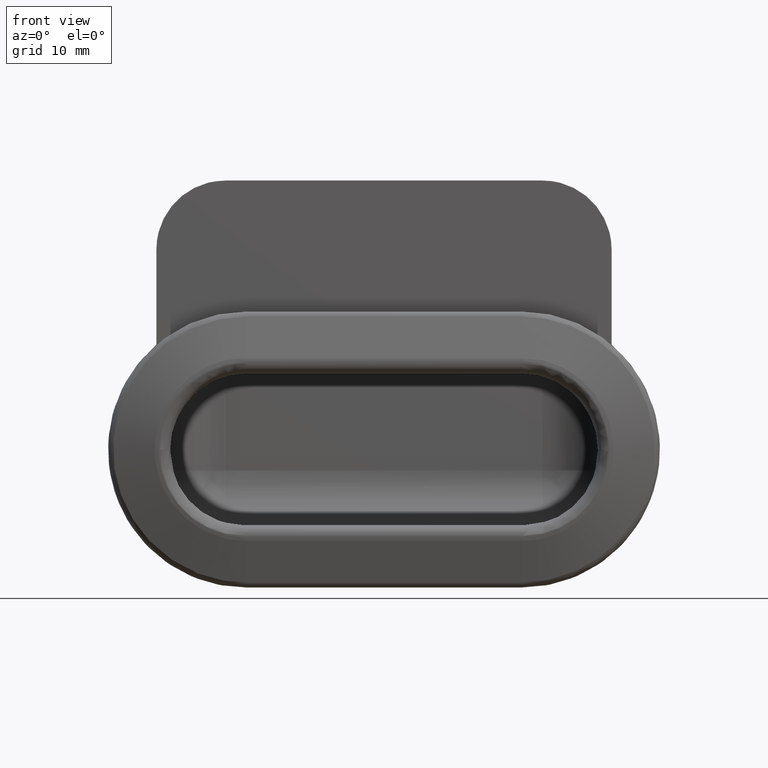
[diagram: clean part render]
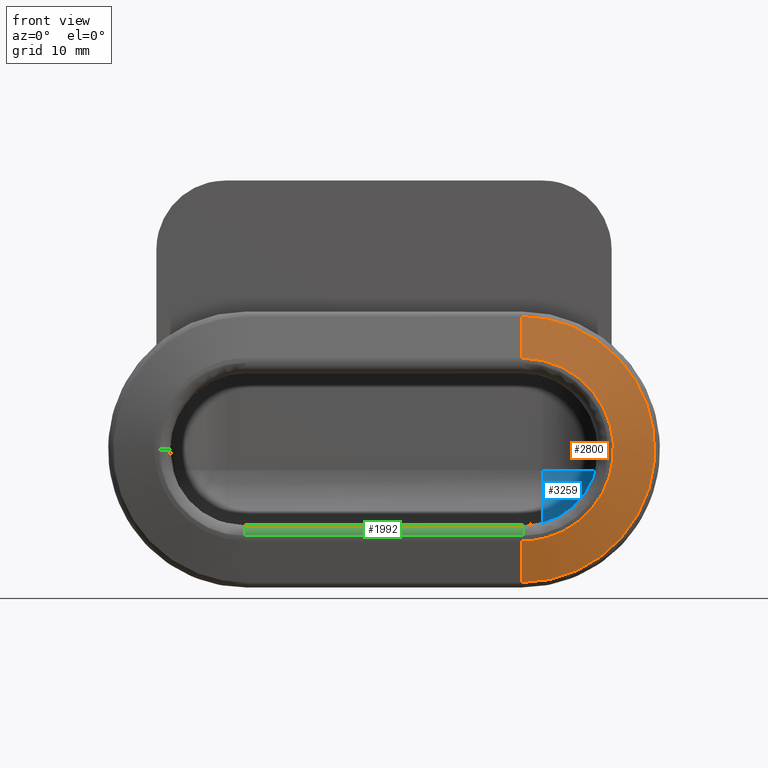
[diagram: same view with three faces highlighted in distinct colors, each labeled with its STEP entity id]
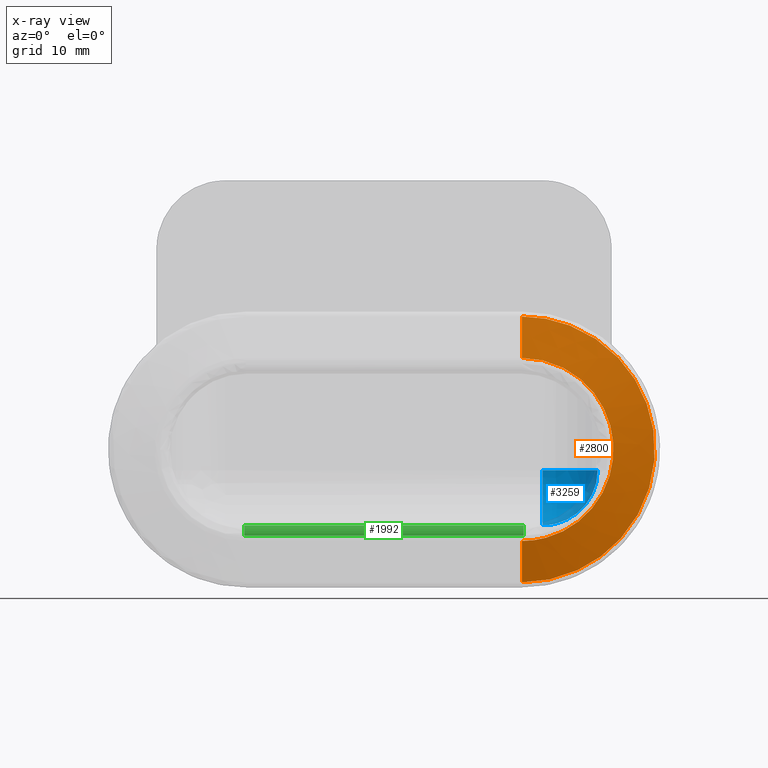
[diagram: x-ray of the same camera — body ghosted, the three highlighted faces saturated]
A machine part, front view with three faces highlighted in distinct colors.
The next image is the same camera in x-ray (body ghosted, the three faces saturated) — at least one of them is partly hidden behind the body in this view.
Their STEP definitions:

[orange] entity #2800 — the highlighted face is a freeform B-spline surface patch.
#1463=CARTESIAN_POINT('',(20.0,1.792777465113545,19.274721127897401));
#1464=VERTEX_POINT('',#1463);
#1510=CARTESIAN_POINT('',(20.0,1.792777465113535,-19.274721127897401));
#1511=VERTEX_POINT('',#1510);
#1563=CARTESIAN_POINT('',(20.0,1.792777465113535,-19.274721127897401));
#1564=CARTESIAN_POINT('',(39.274721127897394,1.792777465113535,-19.274721127897411));
#1565=CARTESIAN_POINT('',(39.274721127897401,1.792777465113535,0.0));
#1566=CARTESIAN_POINT('',(39.274721127897394,1.792777465113535,19.274721127897411));
#1567=CARTESIAN_POINT('',(20.0,1.792777465113535,19.274721127897401));
#1575=(BOUNDED_CURVE()B_SPLINE_CURVE(2,(#1563,#1564,#1565,#1566,#1567),.UNSPECIFIED.,.F.,.U.)B_SPLINE_CURVE_WITH_KNOTS((3,2,3),(0.0,0.500000000000000,1.0),.UNSPECIFIED.)CURVE()GEOMETRIC_REPRESENTATION_ITEM()RATIONAL_B_SPLINE_CURVE((1.0,0.707106781186548,1.0,0.707106781186548,1.0))REPRESENTATION_ITEM(''));
#1576=EDGE_CURVE('',#1511,#1464,#1575,.T.);
#2516=CARTESIAN_POINT('',(20.0,0.076952104718354,-13.269332366514240));
#2517=VERTEX_POINT('',#2516);
#2569=CARTESIAN_POINT('',(20.0,0.076952104718354,13.269332366514240));
#2570=VERTEX_POINT('',#2569);
#2602=CARTESIAN_POINT('',(20.0,0.076952104718354,13.269332366514240));
#2603=CARTESIAN_POINT('',(33.269332366514242,0.076952104718354,13.269332366514243));
#2604=CARTESIAN_POINT('',(33.269332366514242,0.076952104718354,0.0));
#2605=CARTESIAN_POINT('',(33.269332366514242,0.076952104718354,-13.269332366514243));
#2606=CARTESIAN_POINT('',(20.0,0.076952104718354,-13.269332366514240));
#2614=(BOUNDED_CURVE()B_SPLINE_CURVE(2,(#2602,#2603,#2604,#2605,#2606),.UNSPECIFIED.,.F.,.U.)B_SPLINE_CURVE_WITH_KNOTS((3,2,3),(0.0,0.500000000000000,1.0),.UNSPECIFIED.)CURVE()GEOMETRIC_REPRESENTATION_ITEM()RATIONAL_B_SPLINE_CURVE((1.0,0.707106781186548,1.0,0.707106781186548,1.0))REPRESENTATION_ITEM(''));
#2615=EDGE_CURVE('',#2570,#2517,#2614,.T.);
#2728=CARTESIAN_POINT('',(20.0,0.076952104718354,13.269332366514240));
#2729=CARTESIAN_POINT('',(20.0,1.792777465113545,19.274721127897401));
#2730=QUASI_UNIFORM_CURVE('',1,(#2728,#2729),.UNSPECIFIED.,.F.,.U.);
#2731=EDGE_CURVE('',#2570,#1464,#2730,.T.);
#2772=CARTESIAN_POINT('',(19.885514856019100,0.034056470708474,-13.118698108632710));
#2773=CARTESIAN_POINT('',(19.830455552002089,1.836745489973672,-19.427869433001518));
#2774=CARTESIAN_POINT('',(33.470324424975267,0.034056470708474,-13.237250945703611));
#2775=CARTESIAN_POINT('',(39.948603282240363,1.836745489973672,-19.603437848438237));
#2776=CARTESIAN_POINT('',(33.114702026105142,0.034056470708474,0.343420558658851));
#2777=CARTESIAN_POINT('',(39.421951515770232,1.836745489973672,0.508581699112522));
#2778=CARTESIAN_POINT('',(32.759079627235003,0.034056470708474,13.924092063021311));
#2779=CARTESIAN_POINT('',(38.895299749300115,1.836745489973672,20.620601246663284));
#2780=CARTESIAN_POINT('',(19.199092143752239,0.034056470708474,13.094727699323730));
#2781=CARTESIAN_POINT('',(18.813911782236421,1.836745489973672,19.392370942339269));
#2789=(BOUNDED_SURFACE()B_SPLINE_SURFACE(1,2,((#2772,#2774,#2776,#2778,#2780),(#2773,#2775,#2777,#2779,#2781)),.UNSPECIFIED.,.F.,.F.,.U.)B_SPLINE_SURFACE_WITH_KNOTS((2,2),(3,2,3),(0.0,6.561887078224985),(0.0,32.987821302824941,65.975642605649881),.UNSPECIFIED.)GEOMETRIC_REPRESENTATION_ITEM()RATIONAL_B_SPLINE_SURFACE(((1.0,0.694658370458997,1.0,0.694658370458997,1.0),(1.0,0.694658370458997,1.0,0.694658370458997,1.0)))REPRESENTATION_ITEM('')SURFACE());
#2790=CARTESIAN_POINT('',(20.0,0.076952104718354,-13.269332366514240));
#2791=CARTESIAN_POINT('',(20.0,1.792777465113535,-19.274721127897401));
#2792=QUASI_UNIFORM_CURVE('',1,(#2790,#2791),.UNSPECIFIED.,.F.,.U.);
#2793=EDGE_CURVE('',#2517,#1511,#2792,.T.);
#2794=ORIENTED_EDGE('',*,*,#2793,.T.);
#2795=ORIENTED_EDGE('',*,*,#1576,.T.);
#2796=ORIENTED_EDGE('',*,*,#2731,.F.);
#2797=ORIENTED_EDGE('',*,*,#2615,.T.);
#2798=EDGE_LOOP('',(#2794,#2795,#2796,#2797));
#2799=FACE_OUTER_BOUND('',#2798,.T.);
#2800=ADVANCED_FACE('',(#2799),#2789,.T.);

[blue] entity #3259 — the highlighted face is a freeform B-spline surface patch.
#3169=CARTESIAN_POINT('',(23.0,27.0,-11.0));
#3170=VERTEX_POINT('',#3169);
#3179=CARTESIAN_POINT('',(31.0,27.0,-3.0));
#3180=VERTEX_POINT('',#3179);
#3188=CARTESIAN_POINT('',(31.0,27.0,-3.0));
#3189=CARTESIAN_POINT('',(31.000000000000007,27.000000000000011,-11.0));
#3190=CARTESIAN_POINT('',(23.0,27.0,-11.0));
#3198=(BOUNDED_CURVE()B_SPLINE_CURVE(2,(#3188,#3189,#3190),.UNSPECIFIED.,.F.,.U.)CURVE()GEOMETRIC_REPRESENTATION_ITEM()QUASI_UNIFORM_CURVE()RATIONAL_B_SPLINE_CURVE((1.0,0.707106781186548,1.0))REPRESENTATION_ITEM(''));
#3199=EDGE_CURVE('',#3180,#3170,#3198,.T.);
#3204=CARTESIAN_POINT('',(22.572602817600895,25.980100723097443,-10.923202453140457));
#3205=CARTESIAN_POINT('',(22.247510776790744,28.105079514217376,-11.179200065498566));
#3206=CARTESIAN_POINT('',(20.374163750592317,33.725121591723351,-8.529888000353143));
#3207=CARTESIAN_POINT('',(19.094212604095183,33.839807864531380,-4.400661698728753));
#3208=CARTESIAN_POINT('',(25.326844864015534,26.377401748518032,-11.122914921448608));
#3209=CARTESIAN_POINT('',(25.219197801169230,28.851151378647231,-11.435536922754530));
#3210=CARTESIAN_POINT('',(23.072074079302269,35.292523689142698,-8.399046244759042));
#3211=CARTESIAN_POINT('',(20.908583985681826,34.984541525069616,-3.870048616978675));
#3212=CARTESIAN_POINT('',(31.111002347614075,26.377401748518032,-7.032896850901721));
#3213=CARTESIAN_POINT('',(31.559784606227549,28.851151378647231,-6.952063800852994));
#3214=CARTESIAN_POINT('',(29.412660884360591,35.292523689142698,-3.915573122857508));
#3215=CARTESIAN_POINT('',(25.490362823174898,34.984541525069616,-0.630240867322216));
#3216=CARTESIAN_POINT('',(30.868565324331730,25.566714371457302,-2.822878449257959));
#3217=CARTESIAN_POINT('',(31.184603385585650,27.346322198271896,-2.461995245626789));
#3218=CARTESIAN_POINT('',(29.589688077131509,32.131068974078978,-0.206444986928943));
#3219=CARTESIAN_POINT('',(26.413048352730243,32.586175826941734,1.598449801010920));
#3227=(BOUNDED_SURFACE()B_SPLINE_SURFACE(2,2,((#3204,#3208,#3212,#3216),(#3205,#3209,#3213,#3217),(#3206,#3210,#3214,#3218),(#3207,#3211,#3215,#3219)),.UNSPECIFIED.,.F.,.F.,.U.)B_SPLINE_SURFACE_WITH_KNOTS((3,1,3),(3,1,3),(0.0,4.679066891486449,14.025942345202520),(0.0,5.767178928266103,14.643990494771719),.UNSPECIFIED.)GEOMETRIC_REPRESENTATION_ITEM()RATIONAL_B_SPLINE_SURFACE(((1.242341929414637,1.096198854031478,1.096198854031478,1.442429409651411),(1.146143075383160,1.0,1.0,1.346230555619933),(1.146143075383160,1.0,1.0,1.346230555619933),(1.530013190014792,1.383870114631632,1.383870114631632,1.730100670251565)))REPRESENTATION_ITEM('')SURFACE());
#3228=CARTESIAN_POINT('',(23.0,35.0,-3.0));
#3229=VERTEX_POINT('',#3228);
#3230=CARTESIAN_POINT('',(23.0,35.0,-3.0));
#3231=CARTESIAN_POINT('',(31.000000000000007,34.999999999999993,-3.0));
#3232=CARTESIAN_POINT('',(31.0,27.0,-3.0));
#3240=(BOUNDED_CURVE()B_SPLINE_CURVE(2,(#3230,#3231,#3232),.UNSPECIFIED.,.F.,.U.)CURVE()GEOMETRIC_REPRESENTATION_ITEM()QUASI_UNIFORM_CURVE()RATIONAL_B_SPLINE_CURVE((1.0,0.707106781186548,1.0))REPRESENTATION_ITEM(''));
#3241=EDGE_CURVE('',#3229,#3180,#3240,.T.);
#3242=ORIENTED_EDGE('',*,*,#3241,.F.);
#3243=CARTESIAN_POINT('',(23.0,27.0,-11.0));
#3244=CARTESIAN_POINT('',(22.999999999999993,34.999999999999993,-11.0));
#3245=CARTESIAN_POINT('',(23.0,35.0,-3.0));
#3253=(BOUNDED_CURVE()B_SPLINE_CURVE(2,(#3243,#3244,#3245),.UNSPECIFIED.,.F.,.U.)CURVE()GEOMETRIC_REPRESENTATION_ITEM()QUASI_UNIFORM_CURVE()RATIONAL_B_SPLINE_CURVE((1.0,0.707106781186548,1.0))REPRESENTATION_ITEM(''));
#3254=EDGE_CURVE('',#3170,#3229,#3253,.T.);
#3255=ORIENTED_EDGE('',*,*,#3254,.F.);
#3256=ORIENTED_EDGE('',*,*,#3199,.F.);
#3257=EDGE_LOOP('',(#3242,#3255,#3256));
#3258=FACE_OUTER_BOUND('',#3257,.T.);
#3259=ADVANCED_FACE('',(#3258),#3227,.F.);

[green] entity #1992 — the highlighted face is a freeform B-spline surface patch.
#1755=CARTESIAN_POINT('',(-20.249742798353900,0.0,-12.500000000000000));
#1756=VERTEX_POINT('',#1755);
#1757=CARTESIAN_POINT('',(-20.249742798353850,1.499999999999714,-11.0));
#1758=VERTEX_POINT('',#1757);
#1759=CARTESIAN_POINT('',(-20.249742798353900,0.0,-12.500000000000000));
#1760=CARTESIAN_POINT('',(-20.249742798353900,0.0,-11.000000000000002));
#1761=CARTESIAN_POINT('',(-20.249742798353850,1.499999999999714,-11.0));
#1769=(BOUNDED_CURVE()B_SPLINE_CURVE(2,(#1759,#1760,#1761),.UNSPECIFIED.,.F.,.U.)CURVE()GEOMETRIC_REPRESENTATION_ITEM()QUASI_UNIFORM_CURVE()RATIONAL_B_SPLINE_CURVE((1.0,0.707106781186548,1.0))REPRESENTATION_ITEM(''));
#1770=EDGE_CURVE('',#1756,#1758,#1769,.T.);
#1948=CARTESIAN_POINT('',(-21.262229938271599,0.000514012536672,-12.539265422462099));
#1949=CARTESIAN_POINT('',(21.287542116769529,0.000514012536672,-12.539265422462099));
#1950=CARTESIAN_POINT('',(-21.262229938271592,-0.042738390249699,-10.887522799168213));
#1951=CARTESIAN_POINT('',(21.287542116769540,-0.042738390249699,-10.887522799168213));
#1952=CARTESIAN_POINT('',(-21.262229938271592,1.605480113438690,-11.003713280928768));
#1953=CARTESIAN_POINT('',(21.287542116769533,1.605480113438690,-11.003713280928768));
#1961=(BOUNDED_SURFACE()B_SPLINE_SURFACE(1,2,((#1948,#1950,#1952),(#1949,#1951,#1953)),.UNSPECIFIED.,.F.,.F.,.U.)B_SPLINE_SURFACE_WITH_KNOTS((2,2),(3,3),(0.0,42.549772055041132),(0.0,2.656713516132542),.UNSPECIFIED.)GEOMETRIC_REPRESENTATION_ITEM()RATIONAL_B_SPLINE_SURFACE(((1.0,0.670944223154768,0.996392648609106),(1.0,0.670944223154768,0.996392648609106)))REPRESENTATION_ITEM('')SURFACE());
#1962=CARTESIAN_POINT('',(20.249742798353900,0.0,-12.500000000000000));
#1963=VERTEX_POINT('',#1962);
#1964=CARTESIAN_POINT('',(20.249742798353850,1.499999999999714,-11.0));
#1965=VERTEX_POINT('',#1964);
#1966=CARTESIAN_POINT('',(20.249742798353900,0.0,-12.500000000000000));
#1967=CARTESIAN_POINT('',(20.249742798353900,0.0,-11.000000000000002));
#1968=CARTESIAN_POINT('',(20.249742798353850,1.499999999999714,-11.0));
#1976=(BOUNDED_CURVE()B_SPLINE_CURVE(2,(#1966,#1967,#1968),.UNSPECIFIED.,.F.,.U.)CURVE()GEOMETRIC_REPRESENTATION_ITEM()QUASI_UNIFORM_CURVE()RATIONAL_B_SPLINE_CURVE((1.0,0.707106781186548,1.0))REPRESENTATION_ITEM(''));
#1977=EDGE_CURVE('',#1963,#1965,#1976,.T.);
#1978=ORIENTED_EDGE('',*,*,#1977,.T.);
#1979=CARTESIAN_POINT('',(-20.249742798353850,1.499999999999714,-11.0));
#1980=CARTESIAN_POINT('',(20.249742798353850,1.499999999999714,-11.0));
#1981=QUASI_UNIFORM_CURVE('',1,(#1979,#1980),.UNSPECIFIED.,.F.,.U.);
#1982=EDGE_CURVE('',#1758,#1965,#1981,.T.);
#1983=ORIENTED_EDGE('',*,*,#1982,.F.);
#1984=ORIENTED_EDGE('',*,*,#1770,.F.);
#1985=CARTESIAN_POINT('',(20.249742798353900,0.0,-12.500000000000000));
#1986=CARTESIAN_POINT('',(-20.249742798353900,0.0,-12.500000000000000));
#1987=QUASI_UNIFORM_CURVE('',1,(#1985,#1986),.UNSPECIFIED.,.F.,.U.);
#1988=EDGE_CURVE('',#1963,#1756,#1987,.T.);
#1989=ORIENTED_EDGE('',*,*,#1988,.F.);
#1990=EDGE_LOOP('',(#1978,#1983,#1984,#1989));
#1991=FACE_OUTER_BOUND('',#1990,.T.);
#1992=ADVANCED_FACE('',(#1991),#1961,.T.);